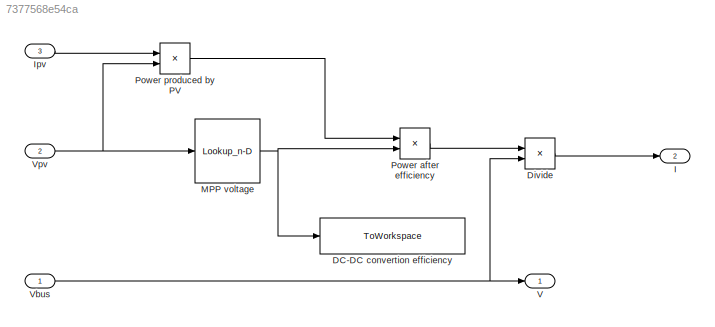
MODEL slx_7377568e54ca
KIND model
CONFIG AbsTol = auto
CONFIG EnableMultiTasking = off
CONFIG FixedStep = auto
CONFIG MaxStep = auto
CONFIG MinStep = auto
CONFIG RelTol = 1e-3
CONFIG SampleTimeConstraint = Unconstrained
CONFIG SolverName = VariableStepAuto
CONFIG StartTime = 0.0
CONFIG StopTime = 10.0
BLOCK [ToWorkspace] DC-DC convertion efficiency
  FixptAsFi = on
  MaxDataPoints = inf
  Ports = [1]
  SampleTime = -1
  SaveFormat = Timeseries
  VariableName = efficiencyPV
BLOCK [Product] Divide
  Inputs = */
  Ports = [2, 1]
BLOCK [Outport] I
  Port = 2
BLOCK [Inport] Ipv
  Port = 3
BLOCK [Lookup_n-D] MPP voltage
  BreakpointsForDimension1 = efficiency_x
  InputPortMap = u0
  InternalRulePriority = Speed
  NumberOfTableDimensions = 1
  Ports = [1, 1]
  RndMeth = Simplest
  Table = efficiency_y
BLOCK [Product] Power after efficiency
  Ports = [2, 1]
BLOCK [Product] Power produced by PV
  Ports = [2, 1]
BLOCK [Outport] V
BLOCK [Inport] Vbus
BLOCK [Inport] Vpv
  Port = 2
LINE Divide:1 -> I:1
LINE Ipv:1 -> Power produced by PV:1
NET MPP voltage:1 -> DC-DC convertion efficiency:1, Power after efficiency:2
LINE Power after efficiency:1 -> Divide:1
LINE Power produced by PV:1 -> Power after efficiency:1
NET Vbus:1 -> Divide:2, V:1
NET Vpv:1 -> MPP voltage:1, Power produced by PV:2
note: NET lines group one-source signal fan-out (src -> all destinations, sorted); 1:1 wires keep LINE
